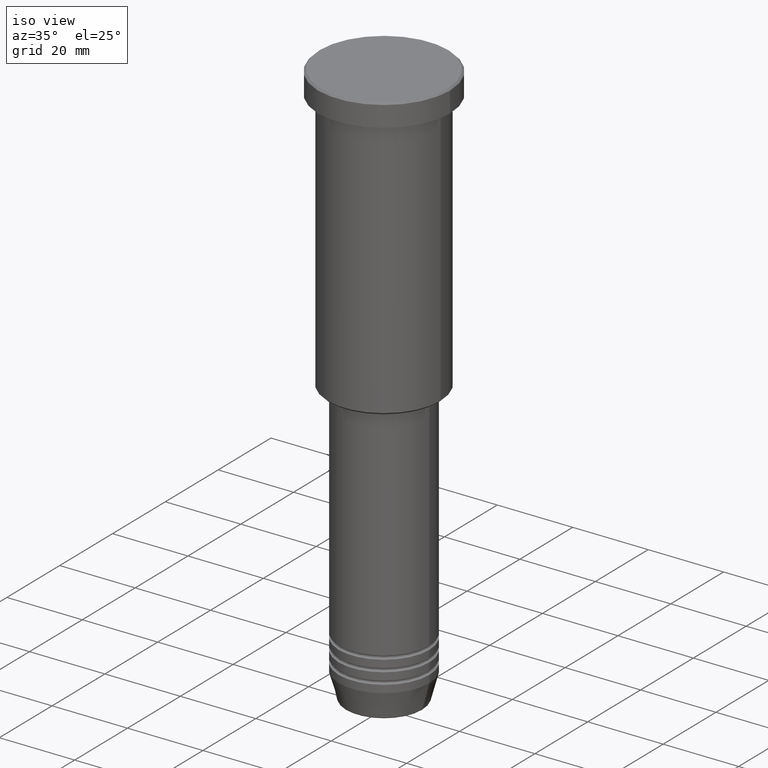
[diagram: clean part render]
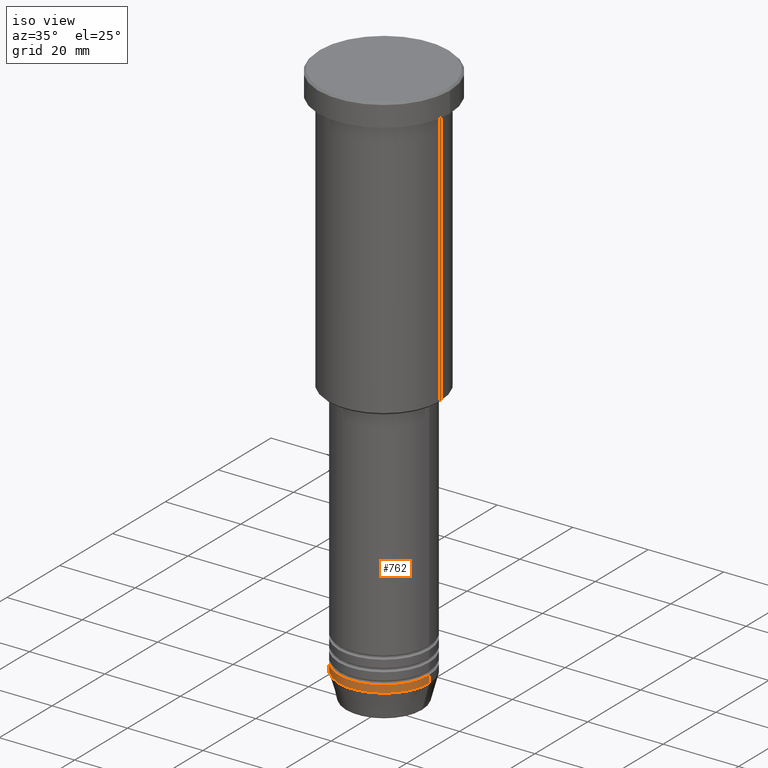
[diagram: same view with one face highlighted and labeled with its STEP entity id]
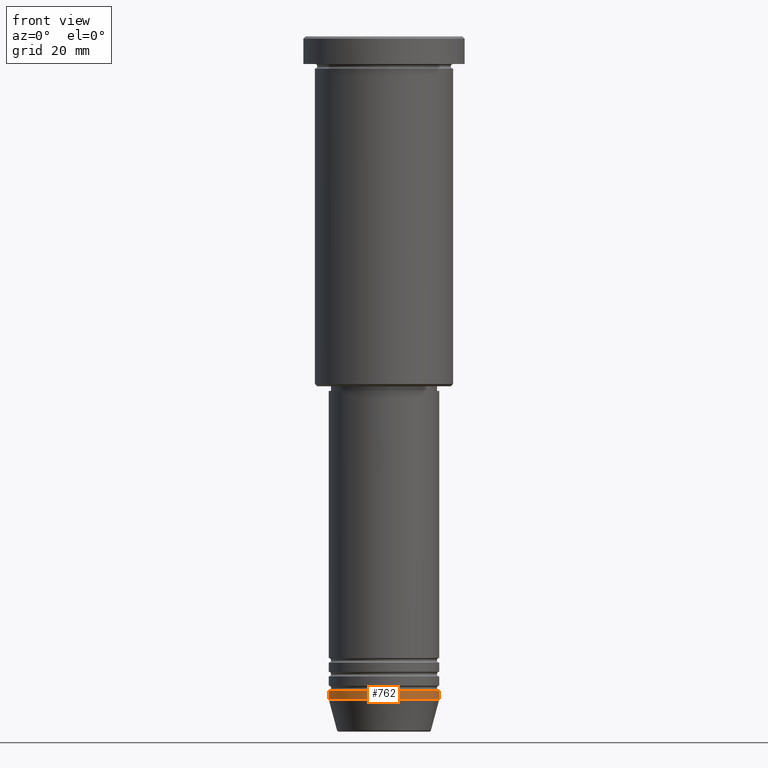
[diagram: same view with one face highlighted and labeled with its STEP entity id]
A machine part, iso view. The second image highlights one B-rep face of the part: STEP entity #762.
A second angle (front view) of the same face is appended — the face is thin or edge-on in the first view.
In plain terms, the highlighted cylindrical surface (partial cylindrical patch) has radius 12 mm, axis along (-0, -0, 1).
Its self-contained STEP definition (entity closure, byte-faithful):
#18 = LINE ( 'NONE', #93, #626 ) ;
#40 = AXIS2_PLACEMENT_3D ( 'NONE', #1080, #272, #924 ) ;
#62 = AXIS2_PLACEMENT_3D ( 'NONE', #722, #456, #647 ) ;
#92 = CARTESIAN_POINT ( 'NONE',  ( 0.000000000000000000, 0.000000000000000000, -144.0000000000000000 ) ) ;
#93 = CARTESIAN_POINT ( 'NONE',  ( -12.00000000000000000, 1.469576158976823947E-15, 0.000000000000000000 ) ) ;
#119 = CYLINDRICAL_SURFACE ( 'NONE', #62, 12.00000000000000000 ) ;
#129 = CARTESIAN_POINT ( 'NONE',  ( 12.00000000000000000, 0.000000000000000000, -142.0000000000000000 ) ) ;
#202 = ORIENTED_EDGE ( 'NONE', *, *, #298, .F. ) ;
#207 = FACE_OUTER_BOUND ( 'NONE', #264, .T. ) ;
#263 = VERTEX_POINT ( 'NONE', #711 ) ;
#264 = EDGE_LOOP ( 'NONE', ( #847, #906, #828, #202 ) ) ;
#269 = VERTEX_POINT ( 'NONE', #985 ) ;
#272 = DIRECTION ( 'NONE',  ( -0.000000000000000000, -0.000000000000000000, 1.000000000000000000 ) ) ;
#291 = DIRECTION ( 'NONE',  ( -0.000000000000000000, -0.000000000000000000, 1.000000000000000000 ) ) ;
#298 = EDGE_CURVE ( 'NONE', #787, #521, #506, .T. ) ;
#432 = CIRCLE ( 'NONE', #840, 12.00000000000000000 ) ;
#456 = DIRECTION ( 'NONE',  ( -0.000000000000000000, -0.000000000000000000, 1.000000000000000000 ) ) ;
#506 = CIRCLE ( 'NONE', #40, 12.00000000000000000 ) ;
#521 = VERTEX_POINT ( 'NONE', #129 ) ;
#575 = VECTOR ( 'NONE', #800, 1000.000000000000000 ) ;
#626 = VECTOR ( 'NONE', #291, 1000.000000000000000 ) ;
#647 = DIRECTION ( 'NONE',  ( 1.000000000000000000, 0.000000000000000000, 0.000000000000000000 ) ) ;
#711 = CARTESIAN_POINT ( 'NONE',  ( -12.00000000000000000, 1.469576158976823947E-15, -144.0000000000000000 ) ) ;
#717 = CARTESIAN_POINT ( 'NONE',  ( 12.00000000000000000, 0.000000000000000000, 0.000000000000000000 ) ) ;
#722 = CARTESIAN_POINT ( 'NONE',  ( 0.000000000000000000, 0.000000000000000000, 0.000000000000000000 ) ) ;
#762 = ADVANCED_FACE ( 'NONE', ( #207 ), #119, .T. ) ;
#787 = VERTEX_POINT ( 'NONE', #1005 ) ;
#800 = DIRECTION ( 'NONE',  ( -0.000000000000000000, -0.000000000000000000, 1.000000000000000000 ) ) ;
#828 = ORIENTED_EDGE ( 'NONE', *, *, #1064, .T. ) ;
#840 = AXIS2_PLACEMENT_3D ( 'NONE', #92, #983, #890 ) ;
#847 = ORIENTED_EDGE ( 'NONE', *, *, #853, .F. ) ;
#853 = EDGE_CURVE ( 'NONE', #263, #787, #18, .T. ) ;
#890 = DIRECTION ( 'NONE',  ( 1.000000000000000000, 0.000000000000000000, 0.000000000000000000 ) ) ;
#906 = ORIENTED_EDGE ( 'NONE', *, *, #1161, .T. ) ;
#924 = DIRECTION ( 'NONE',  ( 1.000000000000000000, 0.000000000000000000, 0.000000000000000000 ) ) ;
#983 = DIRECTION ( 'NONE',  ( -0.000000000000000000, -0.000000000000000000, 1.000000000000000000 ) ) ;
#985 = CARTESIAN_POINT ( 'NONE',  ( 12.00000000000000000, 0.000000000000000000, -144.0000000000000000 ) ) ;
#1005 = CARTESIAN_POINT ( 'NONE',  ( -12.00000000000000000, 1.469576158976823947E-15, -142.0000000000000000 ) ) ;
#1064 = EDGE_CURVE ( 'NONE', #269, #521, #1073, .T. ) ;
#1073 = LINE ( 'NONE', #717, #575 ) ;
#1080 = CARTESIAN_POINT ( 'NONE',  ( 0.000000000000000000, 0.000000000000000000, -142.0000000000000000 ) ) ;
#1161 = EDGE_CURVE ( 'NONE', #263, #269, #432, .T. ) ;